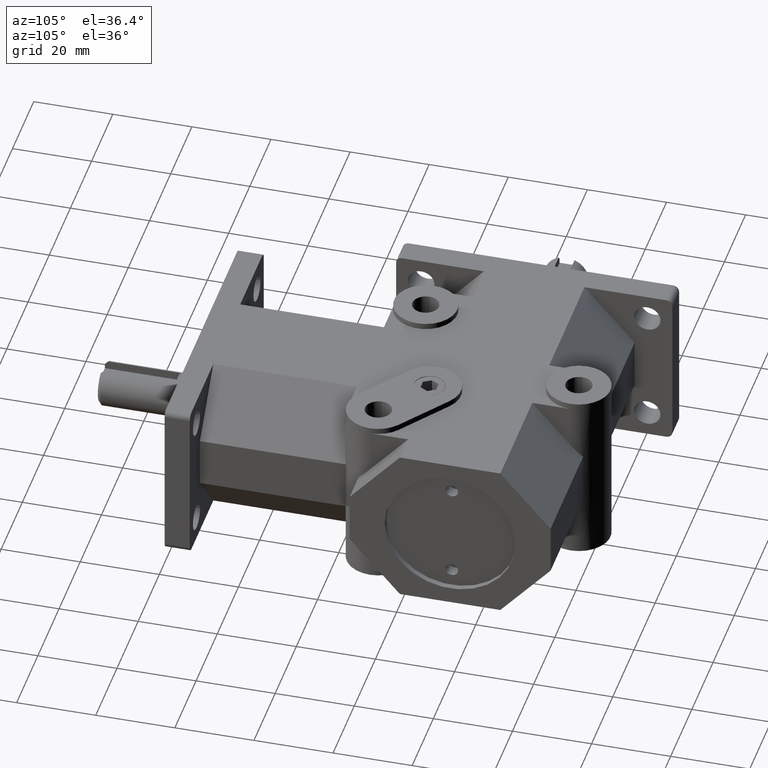
[diagram: clean part render]
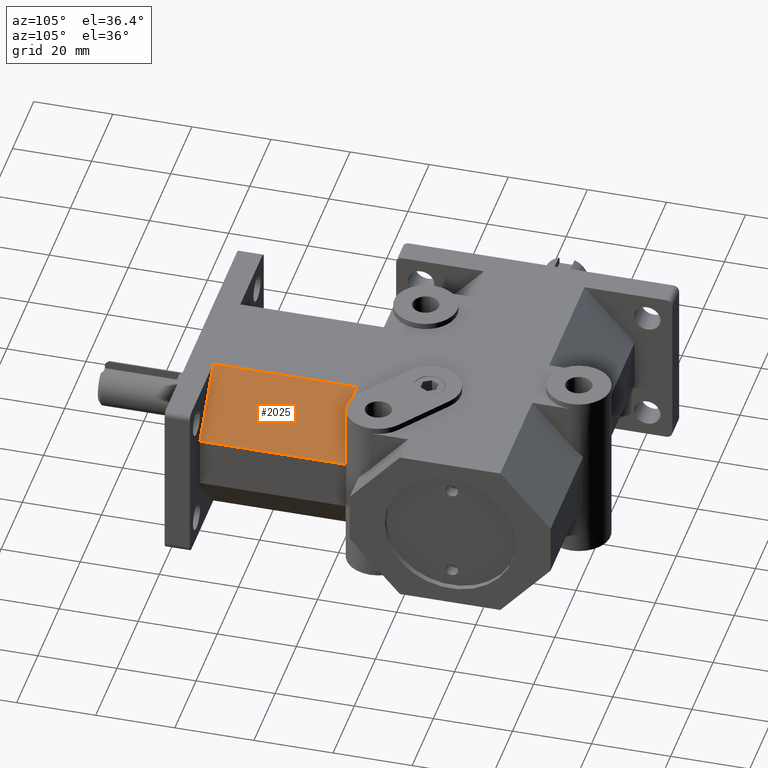
[diagram: same view with one face highlighted and labeled with its STEP entity id]
A machine part, auxiliary view. The second image highlights one B-rep face of the part: STEP entity #2025.
In plain terms, the highlighted planar face has unit normal (-0.7489, 0, -0.6627).
Its self-contained STEP definition (entity closure, byte-faithful):
#183=FACE_OUTER_BOUND('',#299,.T.);
#299=EDGE_LOOP('',(#1375,#1376,#1377,#1378,#1379));
#450=ELLIPSE('',#2162,12.0730291425516,8.001);
#480=LINE('',#3057,#677);
#481=LINE('',#3059,#678);
#482=LINE('',#3061,#679);
#483=LINE('',#3063,#680);
#677=VECTOR('',#2414,1.);
#678=VECTOR('',#2415,1.);
#679=VECTOR('',#2416,1.);
#680=VECTOR('',#2417,1.);
#880=VERTEX_POINT('',#3055);
#881=VERTEX_POINT('',#3056);
#882=VERTEX_POINT('',#3058);
#883=VERTEX_POINT('',#3060);
#884=VERTEX_POINT('',#3062);
#1077=EDGE_CURVE('',#880,#881,#480,.T.);
#1078=EDGE_CURVE('',#882,#880,#481,.T.);
#1079=EDGE_CURVE('',#883,#882,#482,.T.);
#1080=EDGE_CURVE('',#884,#883,#483,.T.);
#1081=EDGE_CURVE('',#881,#884,#450,.T.);
#1375=ORIENTED_EDGE('',*,*,#1077,.F.);
#1376=ORIENTED_EDGE('',*,*,#1078,.F.);
#1377=ORIENTED_EDGE('',*,*,#1079,.F.);
#1378=ORIENTED_EDGE('',*,*,#1080,.F.);
#1379=ORIENTED_EDGE('',*,*,#1081,.F.);
#1947=PLANE('',#2161);
#2025=ADVANCED_FACE('',(#183),#1947,.F.);
#2161=AXIS2_PLACEMENT_3D('',#3054,#2412,#2413);
#2162=AXIS2_PLACEMENT_3D('',#3064,#2418,#2419);
#2412=DIRECTION('center_axis',(-0.748870055165724,0.,-0.662716862978517));
#2413=DIRECTION('ref_axis',(0.,1.,0.));
#2414=DIRECTION('',(0.662716862978517,0.,-0.748870055165724));
#2415=DIRECTION('',(0.,1.,0.));
#2416=DIRECTION('',(-0.662716862978517,0.,0.748870055165724));
#2417=DIRECTION('',(0.,-1.,0.));
#2418=DIRECTION('center_axis',(0.748870055165724,0.,0.662716862978517));
#2419=DIRECTION('ref_axis',(0.662716862978517,0.,-0.748870055165724));
#3054=CARTESIAN_POINT('Origin',(12.7,6.35,20.701));
#3055=CARTESIAN_POINT('',(12.7,42.672,20.701));
#3056=CARTESIAN_POINT('',(22.352,42.672,9.79424000000003));
#3057=CARTESIAN_POINT('',(25.4713953181958,42.672,6.26932329043876));
#3058=CARTESIAN_POINT('',(12.7,6.35,20.701));
#3059=CARTESIAN_POINT('',(12.7,29.9901887651822,20.701));
#3060=CARTESIAN_POINT('',(25.4,6.35,6.35));
#3061=CARTESIAN_POINT('',(12.7,6.35,20.701));
#3062=CARTESIAN_POINT('',(25.4,43.275318133361,6.35));
#3063=CARTESIAN_POINT('',(25.4,6.35,6.35));
#3064=CARTESIAN_POINT('Origin',(22.352,50.673,9.79423999999999));